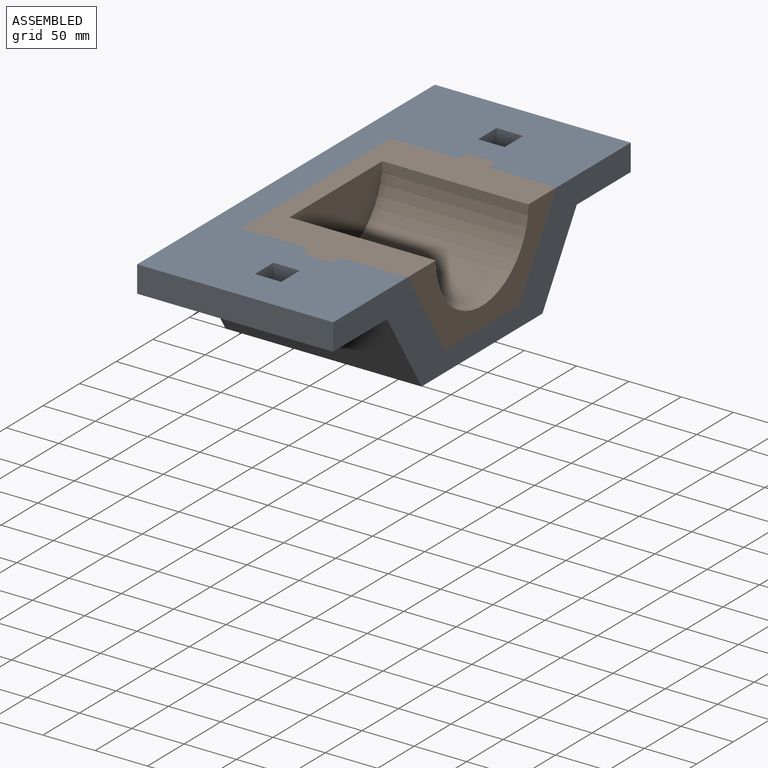
[diagram: assembled view]
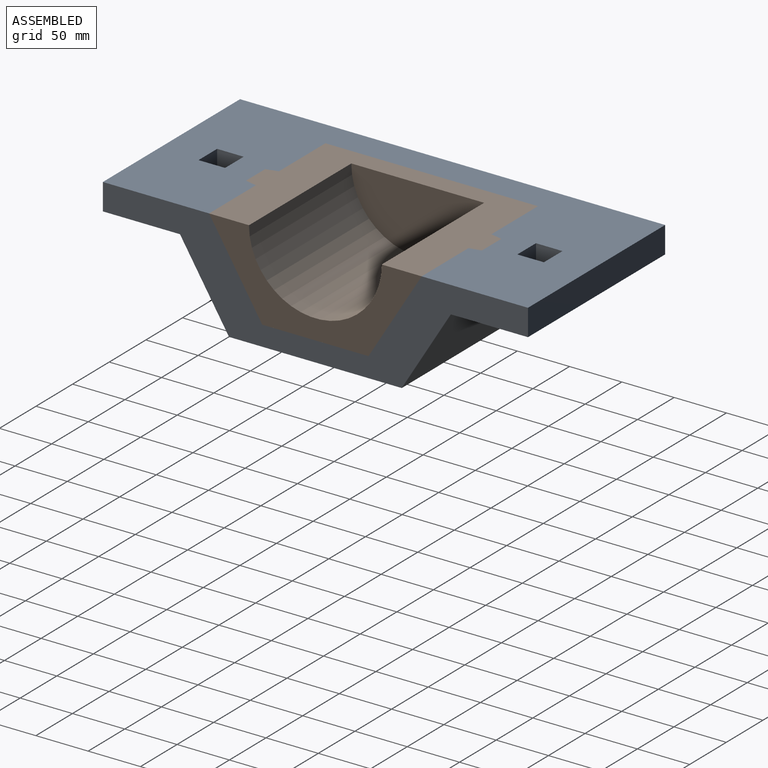
[diagram: assembled view, second angle]
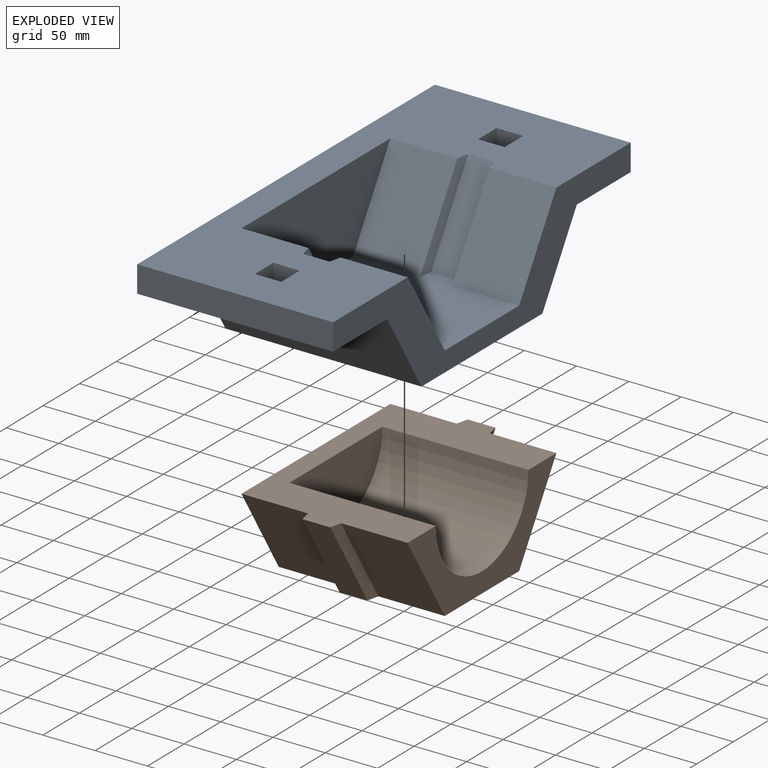
[diagram: exploded view]
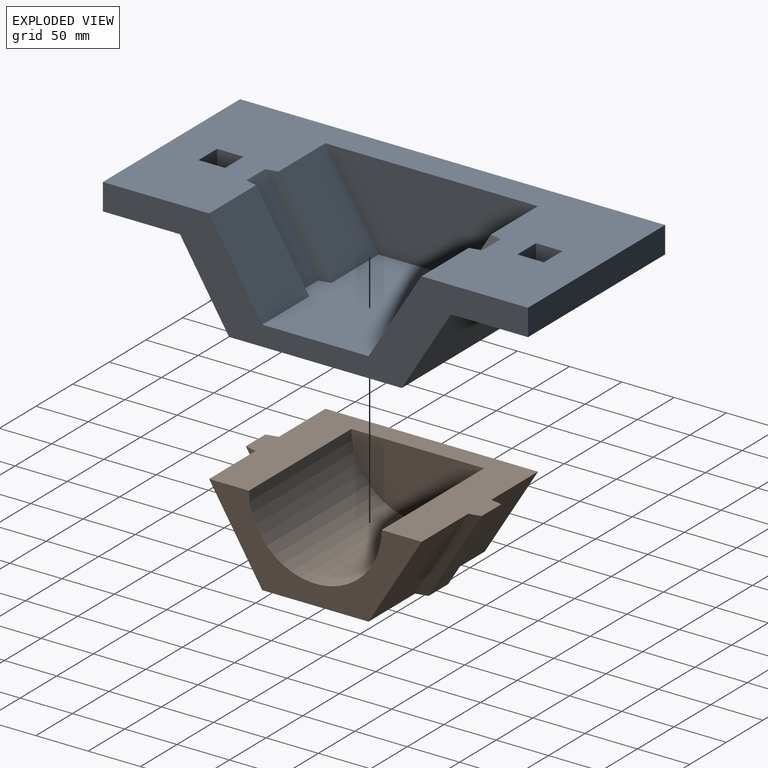
[diagram: exploded view, second angle]
ASSEMBLY  parts=2 mates=3
PART A: 30 faces, bbox 187.3x406.4x101.6 mm
  f0: plane 406.4x187.33mm, normal (0,0,1), area 41955.3mm2, adj f3,f4,f5,f7,f8,f12,f13,f14
  f1: plane 187.33x73.76mm, normal (0,0,-1), area 13171.5mm2, adj f8,f9,f13,f14,f26,f27,f28,f29
  f2: plane 187.33x73.76mm, normal (0,0,-1), area 13171.5mm2, adj f11,f12,f13,f14,f22,f23,f24,f25
  f3: plane 82.55x64.12mm, normal (0,-0.85,0.52), area 6215.3mm2, adj f0,f6,f15,f17
  f4: plane 82.55x64.12mm, normal (0,0.85,0.52), area 6215.3mm2, adj f0,f6,f15,f20
  f5: plane 82.55x64.12mm, normal (0,-0.85,0.52), area 6215.3mm2, adj f0,f6,f13,f18
  f6: plane 158.75x123.97mm, normal (0,0,1), area 16754.2mm2, adj f3,f4,f5,f7,f13,f15,f16,f17
  f7: plane 82.55x64.12mm, normal (0,0.85,0.52), area 6215.3mm2, adj f0,f6,f13,f21
  f8: plane 187.33x25.4mm, normal (0,-1,0), area 4758.1mm2, adj f0,f1,f13,f14
  f9: plane 187.33x76.2mm, normal (0,-0.85,-0.52), area 16760.4mm2, adj f1,f10,f13,f14
  f10: plane 187.33x165.1mm, normal (0,0,-1), area 30927.4mm2, adj f9,f11,f13,f14
  f11: plane 187.33x76.2mm, normal (0,0.85,-0.52), area 16760.4mm2, adj f2,f10,f13,f14
  f12: plane 187.33x25.4mm, normal (0,1,0), area 4758.1mm2, adj f0,f2,f13,f14
  f13: plane 406.4x101.6mm, normal (1,0,0), area 13895.8mm2, adj f0,f1,f2,f5,f6,f7,f8,f9
  f14: plane 406.4x101.6mm, normal (-1,0,0), area 26476.4mm2, adj f0,f1,f2,f8,f9,f10,f11,f12
  f15: plane 203.2x82.55mm, normal (1,0,0), area 12580.6mm2, adj f0,f3,f4,f6
  f16: plane 82.55x50.8mm, normal (0,-0.85,0.52), area 2462mm2, adj f0,f6,f17,f18
  f17: plane 82.55x61.98mm, normal (0.97,-0.22,0.14), area 955.8mm2, adj f0,f3,f6,f16
  f18: plane 82.55x61.98mm, normal (-0.97,-0.22,0.14), area 955.8mm2, adj f0,f5,f6,f16
  f19: plane 82.55x50.8mm, normal (0,0.85,0.52), area 2462mm2, adj f0,f6,f20,f21
  f20: plane 82.55x61.98mm, normal (0.97,0.22,0.14), area 955.8mm2, adj f0,f4,f6,f19
  f21: plane 82.55x61.98mm, normal (-0.97,0.22,0.14), area 955.8mm2, adj f0,f6,f7,f19
  f22: plane 25.4x25.4mm, normal (1,0,0), area 645.2mm2, adj f0,f2,f23,f25
  f23: plane 25.4x25.4mm, normal (0,1,0), area 645.2mm2, adj f0,f2,f22,f24
  f24: plane 25.4x25.4mm, normal (-1,0,0), area 645.2mm2, adj f0,f2,f23,f25
  f25: plane 25.4x25.4mm, normal (0,-1,0), area 645.2mm2, adj f0,f2,f22,f24
  f26: plane 25.4x25.4mm, normal (1,0,0), area 645.2mm2, adj f0,f1,f27,f29
  f27: plane 25.4x25.4mm, normal (0,1,0), area 645.2mm2, adj f0,f1,f26,f28
  f28: plane 25.4x25.4mm, normal (-1,0,0), area 645.2mm2, adj f0,f1,f27,f29
  f29: plane 25.4x25.4mm, normal (0,-1,0), area 645.2mm2, adj f0,f1,f26,f28
PART B: 16 faces, bbox 158.8x225.6x82.6 mm
  f0: plane 82.55x63.5mm, normal (0,-0.85,-0.52), area 6155mm2, adj f2,f5,f7,f15
  f1: plane 82.55x63.5mm, normal (0,0.85,-0.52), area 6155mm2, adj f2,f5,f7,f12
  f2: plane 225.57x158.75mm, normal (0,0,1), area 15169.2mm2, adj f0,f1,f3,f4,f6,f7,f8,f9
  f3: plane 82.55x63.5mm, normal (0,0.85,-0.52), area 6155mm2, adj f2,f5,f6,f11
  f4: plane 82.55x63.5mm, normal (0,-0.85,-0.52), area 6155mm2, adj f2,f5,f6,f14
  f5: plane 158.75x123.97mm, normal (0,0,-1), area 16782.1mm2, adj f0,f1,f3,f4,f6,f7,f10,f11
  f6: plane 203.2x82.55mm, normal (1,0,0), area 12580.6mm2, adj f2,f3,f4,f5
  f7: plane 203.2x82.55mm, normal (-1,0,0), area 6246.8mm2, adj f0,f1,f2,f5,f8
  f8: cylinder r=63.5mm len=139.7mm, axis (1,0,0), area 27868.9mm2, adj f2,f7,f9
  f9: plane 127x63.5mm, normal (-1,0,0), area 6333.8mm2, adj f2,f8
  f10: plane 82.55x50.8mm, normal (0,0.85,-0.52), area 2582.7mm2, adj f2,f5,f11,f12
  f11: plane 82.55x61.98mm, normal (0.97,0.22,-0.14), area 955.8mm2, adj f2,f3,f5,f10
  f12: plane 82.55x61.98mm, normal (-0.97,0.22,-0.14), area 955.8mm2, adj f1,f2,f5,f10
  f13: plane 82.55x50.8mm, normal (0,-0.85,-0.52), area 2582.7mm2, adj f2,f5,f14,f15
  f14: plane 82.55x61.98mm, normal (0.97,-0.22,-0.14), area 955.8mm2, adj f2,f4,f5,f13
  f15: plane 82.55x61.98mm, normal (-0.97,-0.22,-0.14), area 955.8mm2, adj f0,f2,f5,f13
PLACE A t=(60.33,0,0)mm
PLACE B rot(axis=(0,0,1),180deg) t=(60.33,0,0)mm
MATE planar A.f6 <-> B.f5  axis (0,0,1) through (60.33,0,-82.55)mm
MATE planar A.f15 <-> B.f6  axis (1,0,0) through (-19.05,0,-36.69)mm
MATE planar B.f1 <-> A.f7  axis (0,-0.85,-0.52) through (139.7,-76.2,-41.27)mm
